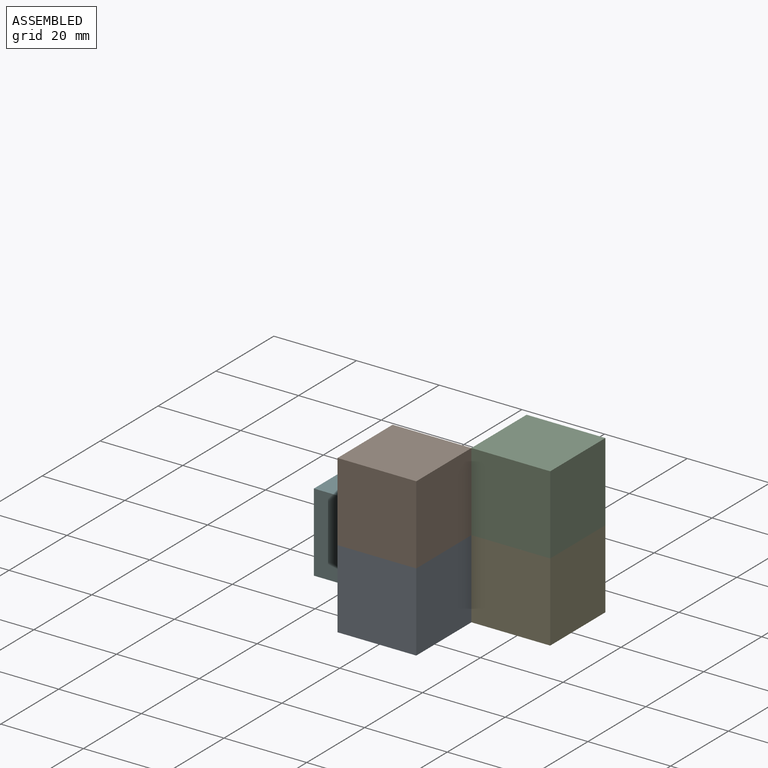
[diagram: assembled view]
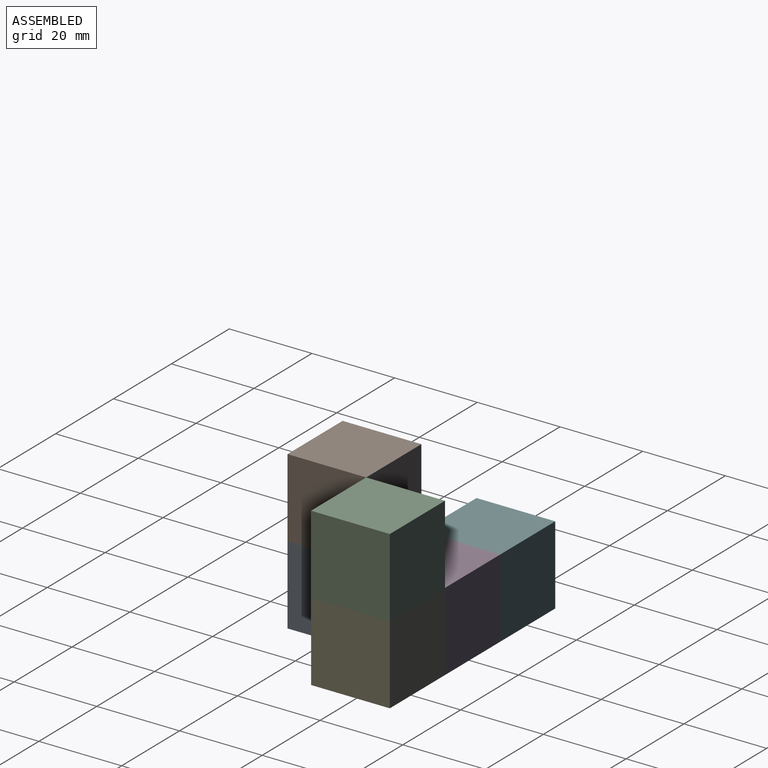
[diagram: assembled view, second angle]
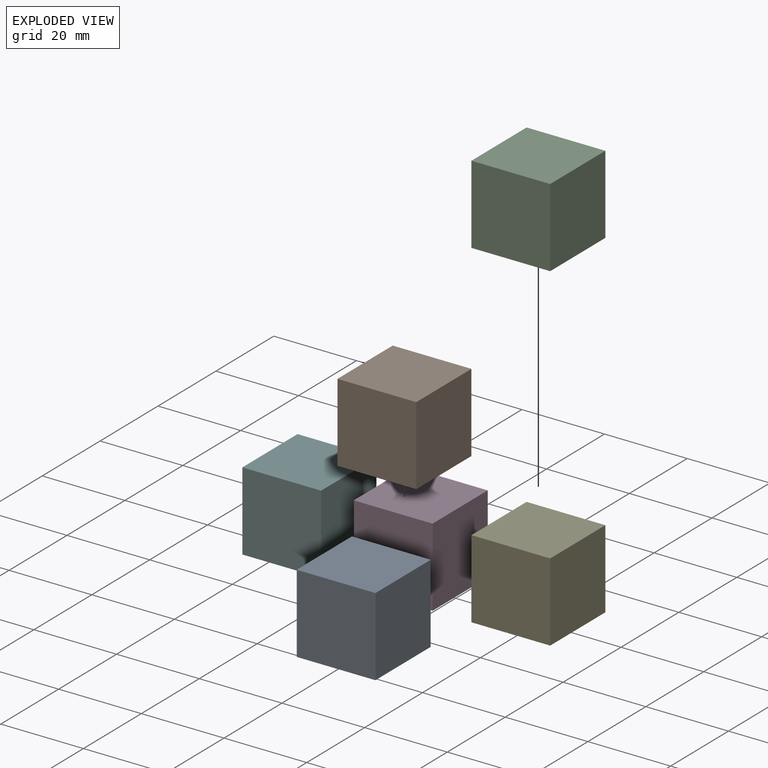
[diagram: exploded view]
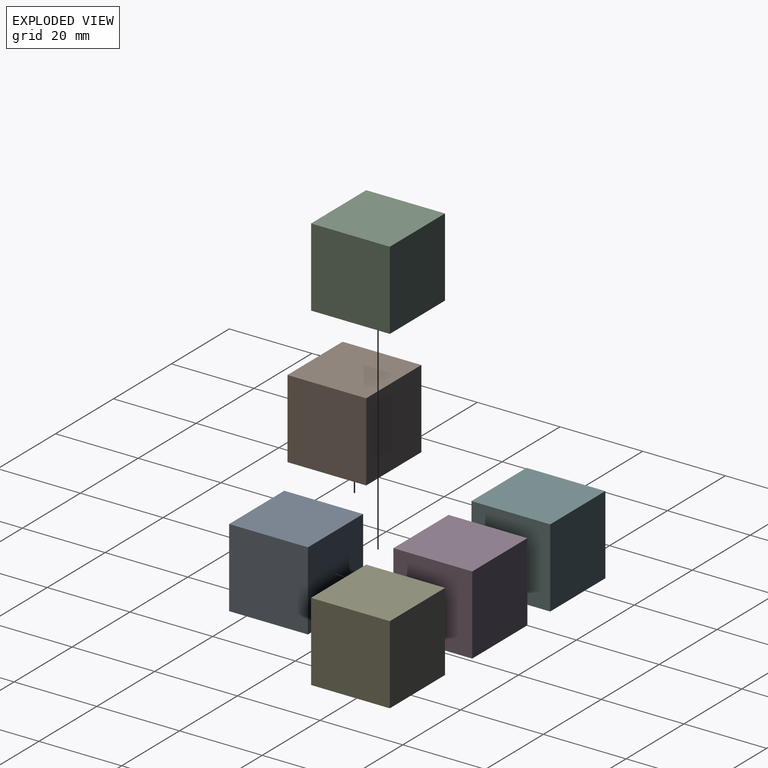
[diagram: exploded view, second angle]
ASSEMBLY  parts=6 mates=5
PART A: 6 faces, bbox 19.1x19.1x19.1 mm
  f0: plane 19.05x19.05mm, normal (0,0,-1), area 362.9mm2, adj f1,f3,f4,f5
  f1: plane 19.05x19.05mm, normal (1,0,0), area 362.9mm2, adj f0,f2,f4,f5
  f2: plane 19.05x19.05mm, normal (0,0,1), area 362.9mm2, adj f1,f3,f4,f5
  f3: plane 19.05x19.05mm, normal (-1,0,0), area 362.9mm2, adj f0,f2,f4,f5
  f4: plane 19.05x19.05mm, normal (0,-1,0), area 362.9mm2, adj f0,f1,f2,f3
  f5: plane 19.05x19.05mm, normal (0,1,0), area 362.9mm2, adj f0,f1,f2,f3
PART B: same geometry as A
PART C: same geometry as A
PART D: same geometry as A
PART E: same geometry as A
PART F: same geometry as A
PLACE A t=(-19.04,-9.5,-19.02)mm
PLACE B t=(-19.04,-9.5,0.03)mm
PLACE C t=(0.01,9.55,0.03)mm fixed
PLACE D t=(-19.04,9.55,-19.02)mm
PLACE E t=(0.01,9.55,-19.02)mm
PLACE F t=(-38.09,9.55,-19.02)mm
MATE fastened F.f1 <-> D.f3  axis (1,0,0) through (-28.57,0.02,-19.02)mm
MATE fastened A.f2 <-> B.f0  axis (0,0,1) through (-19.04,-19.03,-9.49)mm
MATE fastened D.f4 <-> A.f5  axis (0,-1,0) through (-19.04,-9.5,-19.02)mm
MATE fastened E.f3 <-> D.f1  axis (-1,0,0) through (-9.52,0.02,-19.02)mm
MATE fastened C.f0 <-> E.f2  axis (0,0,-1) through (0.01,0.02,-9.49)mm
